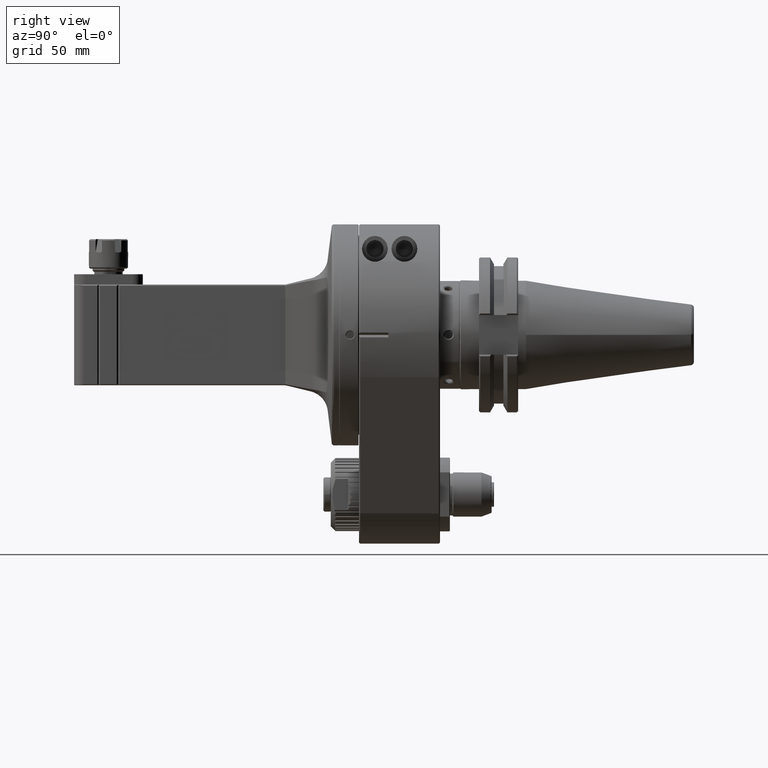
[diagram: clean part render]
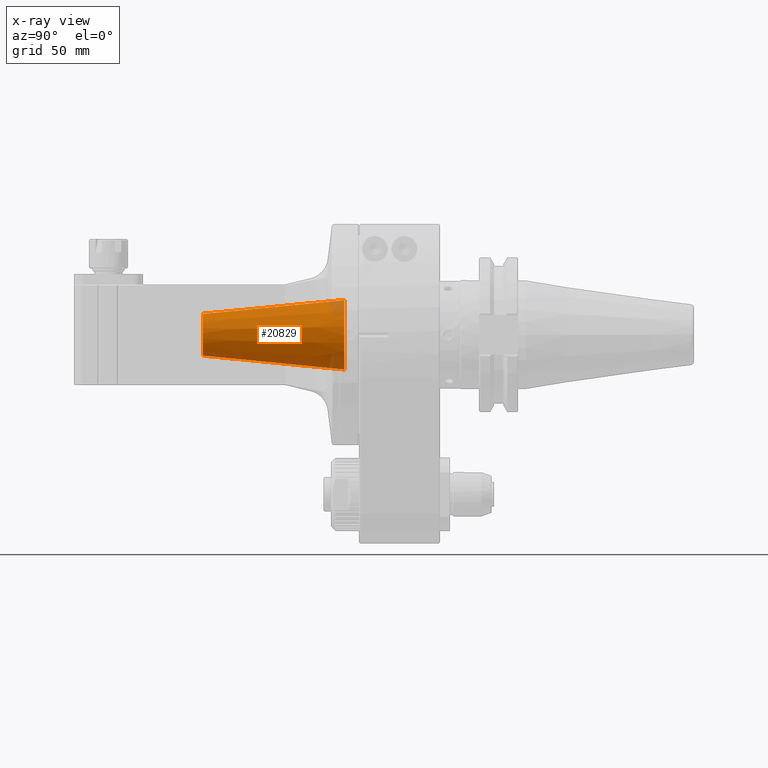
[diagram: x-ray — body ghosted, one internal face saturated and labeled with its STEP entity id]
A machine part, right view, then the same camera in x-ray: the body is ghosted and one INTERNAL B-rep face — a face not visible from any outside direction — is saturated and labeled: STEP entity #20829.
In plain terms, the highlighted conical surface has half-angle 5.662 deg.
Its self-contained STEP definition (entity closure, byte-faithful):
#596=CONICAL_SURFACE('',#22805,11.39966357822,0.0988150462110786);
#2336=LINE('',#40377,#4138);
#4138=VECTOR('',#28358,11.39966357822);
#5690=FACE_OUTER_BOUND('',#6974,.T.);
#6974=EDGE_LOOP('',(#18523,#18524,#18525,#18526,#18527));
#7862=CIRCLE('',#22804,14.25);
#7863=CIRCLE('',#22806,8.5493617967212);
#7864=CIRCLE('',#22807,8.5493617967212);
#9799=VERTEX_POINT('',#40373);
#9800=VERTEX_POINT('',#40376);
#9801=VERTEX_POINT('',#40378);
#12734=EDGE_CURVE('',#9799,#9799,#7862,.T.);
#12735=EDGE_CURVE('',#9799,#9800,#2336,.T.);
#12736=EDGE_CURVE('',#9800,#9801,#7863,.T.);
#12737=EDGE_CURVE('',#9801,#9800,#7864,.T.);
#18523=ORIENTED_EDGE('',*,*,#12734,.T.);
#18524=ORIENTED_EDGE('',*,*,#12735,.T.);
#18525=ORIENTED_EDGE('',*,*,#12736,.T.);
#18526=ORIENTED_EDGE('',*,*,#12737,.T.);
#18527=ORIENTED_EDGE('',*,*,#12735,.F.);
#20829=ADVANCED_FACE('',(#5690),#596,.T.);
#22804=AXIS2_PLACEMENT_3D('',#40374,#28354,#28355);
#22805=AXIS2_PLACEMENT_3D('',#40375,#28356,#28357);
#22806=AXIS2_PLACEMENT_3D('',#40379,#28359,#28360);
#22807=AXIS2_PLACEMENT_3D('',#40380,#28361,#28362);
#28354=DIRECTION('center_axis',(0.,-1.,0.));
#28355=DIRECTION('ref_axis',(1.,0.,0.));
#28356=DIRECTION('center_axis',(0.,1.,0.));
#28357=DIRECTION('ref_axis',(1.,0.,0.));
#28358=DIRECTION('',(0.0986543128782912,-0.995121764685364,-1.20816688488481E-17));
#28359=DIRECTION('center_axis',(0.,1.,0.));
#28360=DIRECTION('ref_axis',(1.,0.,0.));
#28361=DIRECTION('center_axis',(0.,1.,0.));
#28362=DIRECTION('ref_axis',(1.,0.,0.));
#40373=CARTESIAN_POINT('',(-14.25,96.,0.));
#40374=CARTESIAN_POINT('Origin',(0.,96.,1.127489598105E-14));
#40375=CARTESIAN_POINT('Origin',(0.,67.24878044117,2.173188702433E-14));
#40376=CARTESIAN_POINT('',(-8.5493617967212,38.4979102973563,2.27788818802407E-14));
#40377=CARTESIAN_POINT('',(-11.39966357822,67.24878044117,2.31279431755724E-14));
#40378=CARTESIAN_POINT('',(1.71724398231407E-14,38.4979102973563,8.54936179672123));
#40379=CARTESIAN_POINT('Origin',(0.,38.4979102973563,2.173188702433E-14));
#40380=CARTESIAN_POINT('Origin',(0.,38.4979102973563,2.173188702433E-14));